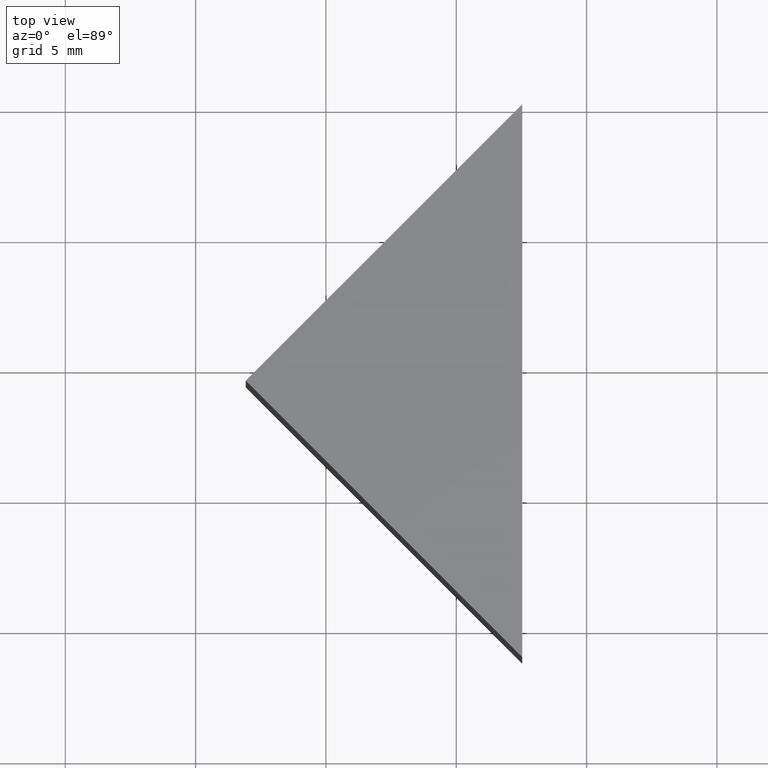
[diagram: clean part render]
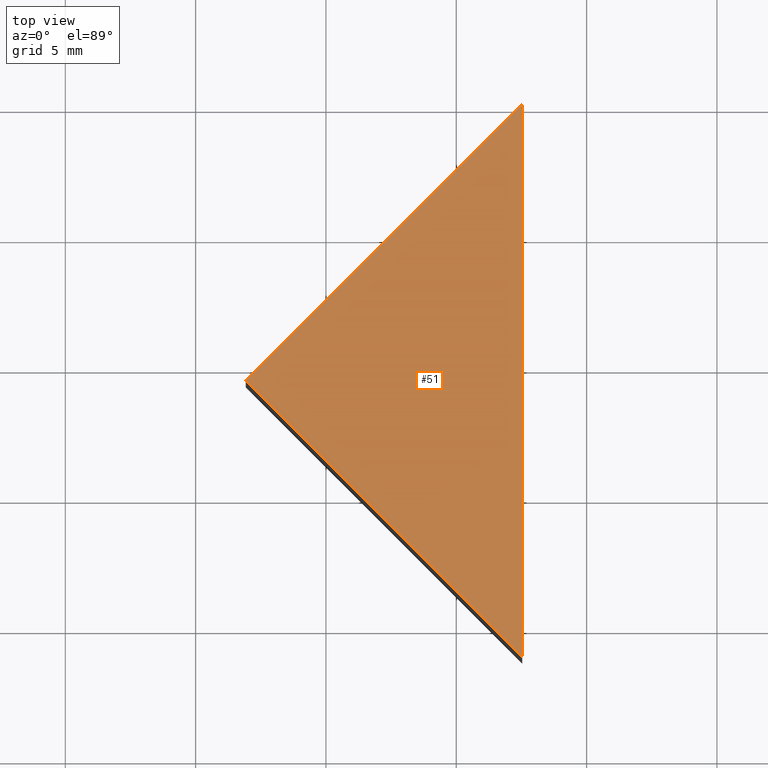
[diagram: same view with one face highlighted and labeled with its STEP entity id]
A machine part, top view. The second image highlights one B-rep face of the part: STEP entity #51.
In plain terms, the highlighted planar face has unit normal (0, -0, 1).
Its self-contained STEP definition (entity closure, byte-faithful):
#15 = EDGE_CURVE ( 'NONE', #52, #21, #54, .T. ) ;
#18 = ORIENTED_EDGE ( 'NONE', *, *, #15, .T. ) ;
#20 = CARTESIAN_POINT ( 'NONE',  ( 0.0000000000000000000, 0.0000000000000000000, 15.00000000000000000 ) ) ;
#21 = VERTEX_POINT ( 'NONE', #162 ) ;
#22 = DIRECTION ( 'NONE',  ( 0.7071067811865481300, -0.7071067811865470200, 0.0000000000000000000 ) ) ;
#28 = EDGE_CURVE ( 'NONE', #164, #52, #75, .T. ) ;
#30 = VECTOR ( 'NONE', #147, 1000.000000000000000 ) ;
#32 = LINE ( 'NONE', #111, #30 ) ;
#45 = CARTESIAN_POINT ( 'NONE',  ( 136.9239079285209500, 34.43923125474582000, 15.00000000000000000 ) ) ;
#49 = CARTESIAN_POINT ( 'NONE',  ( 147.5305096463191600, 45.04583297254402700, 15.00000000000000000 ) ) ;
#51 = ADVANCED_FACE ( 'NONE', ( #83 ), #110, .T. ) ;
#52 = VERTEX_POINT ( 'NONE', #101 ) ;
#54 = LINE ( 'NONE', #45, #139 ) ;
#57 = VECTOR ( 'NONE', #87, 1000.000000000000000 ) ;
#59 = AXIS2_PLACEMENT_3D ( 'NONE', #20, #88, #135 ) ;
#69 = ORIENTED_EDGE ( 'NONE', *, *, #28, .T. ) ;
#75 = LINE ( 'NONE', #145, #57 ) ;
#81 = EDGE_CURVE ( 'NONE', #21, #164, #32, .T. ) ;
#83 = FACE_OUTER_BOUND ( 'NONE', #95, .T. ) ;
#87 = DIRECTION ( 'NONE',  ( -0.7071067811865484600, -0.7071067811865465700, 0.0000000000000000000 ) ) ;
#88 = DIRECTION ( 'NONE',  ( 0.0000000000000000000, -0.0000000000000000000, 1.000000000000000000 ) ) ;
#95 = EDGE_LOOP ( 'NONE', ( #160, #69, #18 ) ) ;
#101 = CARTESIAN_POINT ( 'NONE',  ( 136.9239079285209500, 34.43923125474582000, 15.00000000000000000 ) ) ;
#110 = PLANE ( 'NONE',  #59 ) ;
#111 = CARTESIAN_POINT ( 'NONE',  ( 147.5305096463191600, 23.83262953694761100, 15.00000000000000000 ) ) ;
#135 = DIRECTION ( 'NONE',  ( 1.000000000000000000, 0.0000000000000000000, -0.0000000000000000000 ) ) ;
#139 = VECTOR ( 'NONE', #22, 1000.000000000000000 ) ;
#145 = CARTESIAN_POINT ( 'NONE',  ( 147.5305096463191600, 45.04583297254402700, 15.00000000000000000 ) ) ;
#147 = DIRECTION ( 'NONE',  ( 0.0000000000000000000, 1.000000000000000000, 0.0000000000000000000 ) ) ;
#160 = ORIENTED_EDGE ( 'NONE', *, *, #81, .T. ) ;
#162 = CARTESIAN_POINT ( 'NONE',  ( 147.5305096463191600, 23.83262953694761100, 15.00000000000000000 ) ) ;
#164 = VERTEX_POINT ( 'NONE', #49 ) ;